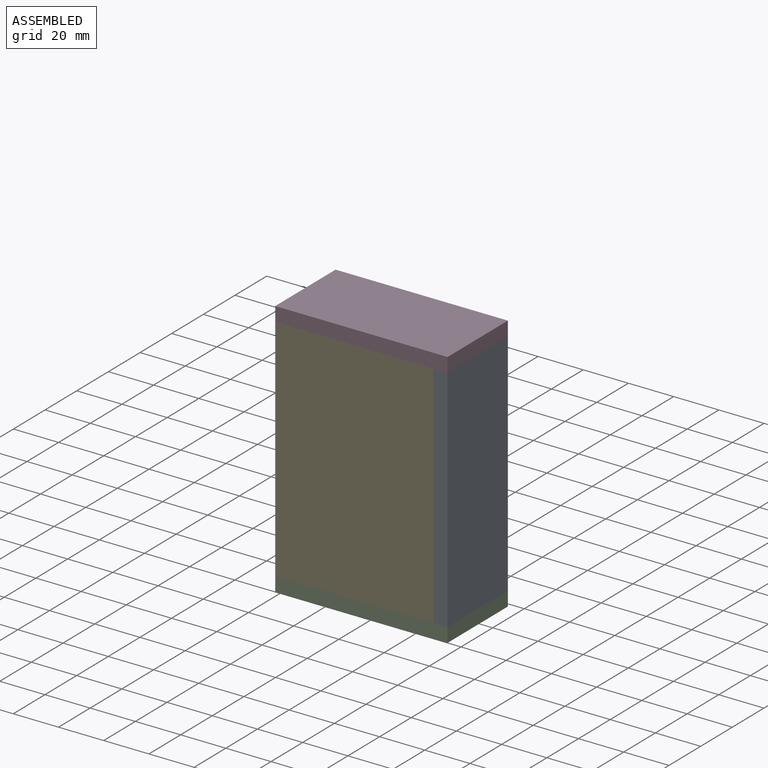
[diagram: assembled view]
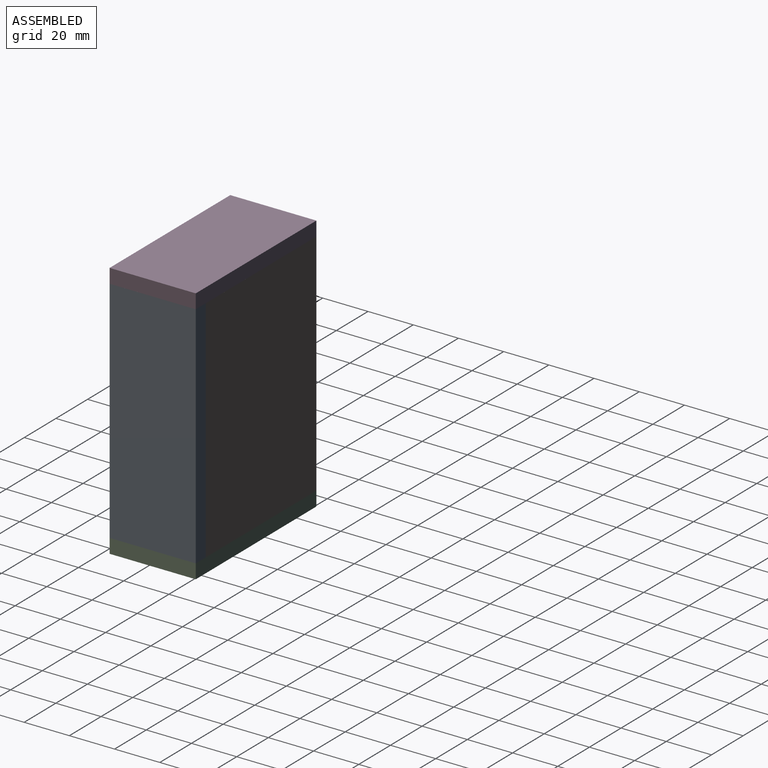
[diagram: assembled view, second angle]
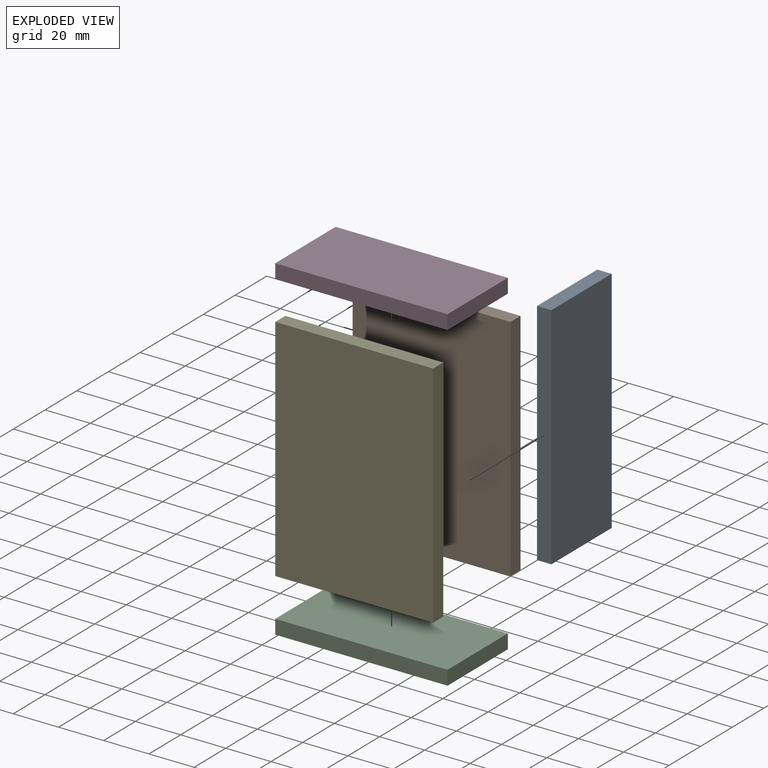
[diagram: exploded view]
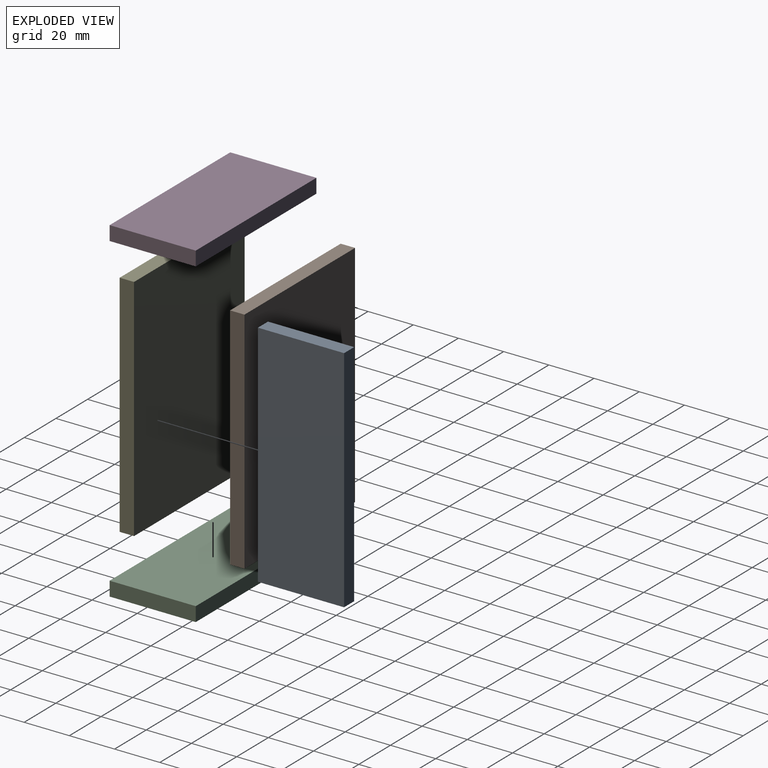
[diagram: exploded view, second angle]
ASSEMBLY  parts=5 mates=12
PART A: 6 faces, bbox 6.4x38.1x101.6 mm
  f0: plane 101.6x6.35mm, normal (0,1,0), area 645.2mm2, adj f1,f3,f4,f5
  f1: plane 38.1x6.35mm, normal (0,0,1), area 241.9mm2, adj f0,f2,f4,f5
  f2: plane 101.6x6.35mm, normal (0,-1,0), area 645.2mm2, adj f1,f3,f4,f5
  f3: plane 38.1x6.35mm, normal (0,0,-1), area 241.9mm2, adj f0,f2,f4,f5
  f4: plane 101.6x38.1mm, normal (1,0,0), area 3871mm2, adj f0,f1,f2,f3
  f5: plane 101.6x38.1mm, normal (-1,0,0), area 3871mm2, adj f0,f1,f2,f3
PART B: 6 faces, bbox 69.9x6.4x101.6 mm
  f0: plane 69.85x6.35mm, normal (0,0,1), area 443.5mm2, adj f1,f3,f4,f5
  f1: plane 101.6x6.35mm, normal (-1,0,0), area 645.2mm2, adj f0,f2,f4,f5
  f2: plane 69.85x6.35mm, normal (0,0,-1), area 443.5mm2, adj f1,f3,f4,f5
  f3: plane 101.6x6.35mm, normal (1,0,0), area 645.2mm2, adj f0,f2,f4,f5
  f4: plane 101.6x69.85mm, normal (0,-1,0), area 7096.8mm2, adj f0,f1,f2,f3
  f5: plane 101.6x69.85mm, normal (0,1,0), area 7096.8mm2, adj f0,f1,f2,f3
PART C: 6 faces, bbox 76.2x38.1x6.4 mm
  f0: plane 76.2x6.35mm, normal (0,1,0), area 483.9mm2, adj f1,f3,f4,f5
  f1: plane 38.1x6.35mm, normal (-1,0,0), area 241.9mm2, adj f0,f2,f4,f5
  f2: plane 76.2x6.35mm, normal (0,-1,0), area 483.9mm2, adj f1,f3,f4,f5
  f3: plane 38.1x6.35mm, normal (1,0,0), area 241.9mm2, adj f0,f2,f4,f5
  f4: plane 76.2x38.1mm, normal (0,0,1), area 2903.2mm2, adj f0,f1,f2,f3
  f5: plane 76.2x38.1mm, normal (0,0,-1), area 2903.2mm2, adj f0,f1,f2,f3
PART D: same geometry as C
PART E: same geometry as B
PLACE A t=(-8.63,57.38,-1.54)mm
PLACE B t=(31.92,64.3,25.75)mm
PLACE C t=(14.61,71.59,34.25)mm
PLACE D t=(14.61,71.59,142.2)mm
PLACE E t=(31.92,32.55,25.75)mm
MATE planar B.f5 <-> C.f0  axis (0,1,0) through (-43.55,64.3,91.4)mm
MATE planar E.f1 <-> C.f1  axis (-1,0,0) through (-78.48,29.38,91.4)mm
MATE planar D.f3 <-> A.f4  axis (1,0,0) through (-2.28,45.25,145.37)mm
MATE planar A.f2 <-> C.f2  axis (0,-1,0) through (-5.45,26.2,91.4)mm
MATE planar A.f3 <-> C.f4  axis (0,0,-1) through (-5.45,45.25,40.6)mm
MATE planar B.f2 <-> C.f4  axis (0,0,-1) through (-43.55,61.13,40.6)mm
MATE planar A.f4 <-> C.f3  axis (1,0,0) through (-2.28,26.2,91.4)mm
MATE planar D.f0 <-> B.f5  axis (0,1,0) through (-40.38,64.3,145.37)mm
MATE planar B.f1 <-> C.f1  axis (-1,0,0) through (-78.48,61.13,91.4)mm
MATE planar E.f4 <-> C.f2  axis (0,-1,0) through (-43.55,26.2,91.4)mm
MATE planar D.f5 <-> E.f0  axis (0,0,-1) through (-40.38,45.25,142.2)mm
MATE planar E.f2 <-> C.f4  axis (0,0,-1) through (-43.55,29.38,40.6)mm
